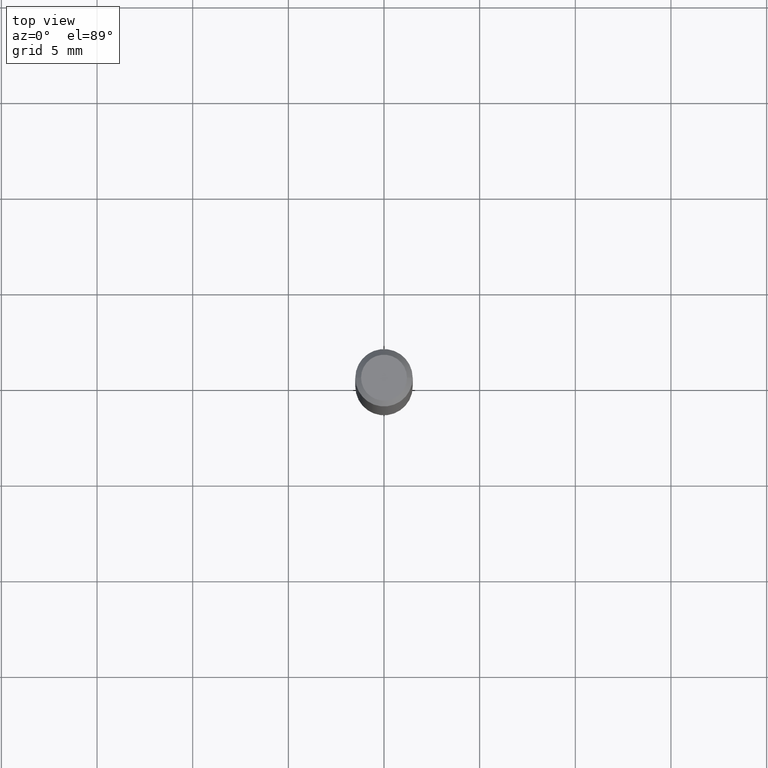
[diagram: clean part render]
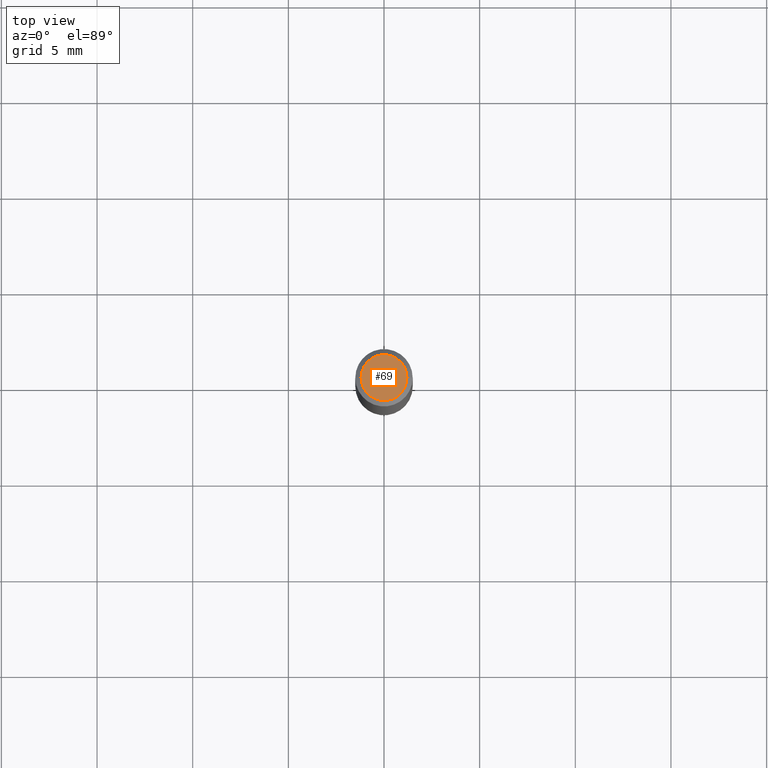
[diagram: same view with one face highlighted and labeled with its STEP entity id]
A machine part, top view. The second image highlights one B-rep face of the part: STEP entity #69.
In plain terms, the highlighted planar face has unit normal (0, -0, -1).
Its self-contained STEP definition (entity closure, byte-faithful):
#16 = FACE_OUTER_BOUND ( 'NONE', #379, .T. ) ;
#20 = CARTESIAN_POINT ( 'NONE',  ( 4.132873053354867254E-48, -5.900647395337818946E-34, -1.690012582823346072E-19 ) ) ;
#37 = CARTESIAN_POINT ( 'NONE',  ( 0.04724000000000000421, -3.852183633974369345E-16, -3.380025165621689721E-19 ) ) ;
#40 = AXIS2_PLACEMENT_3D ( 'NONE', #20, #172, #328 ) ;
#47 = ORIENTED_EDGE ( 'NONE', *, *, #344, .T. ) ;
#69 = ADVANCED_FACE ( 'NONE', ( #16 ), #469, .F. ) ;
#75 = AXIS2_PLACEMENT_3D ( 'NONE', #93, #165, #334 ) ;
#93 = CARTESIAN_POINT ( 'NONE',  ( 8.265746106709734507E-48, -1.180129479067563789E-33, -3.380025165646692144E-19 ) ) ;
#99 = CIRCLE ( 'NONE', #75, 0.04724000000000000421 ) ;
#113 = CIRCLE ( 'NONE', #247, 0.04724000000000000421 ) ;
#120 = ORIENTED_EDGE ( 'NONE', *, *, #375, .T. ) ;
#165 = DIRECTION ( 'NONE',  ( -2.445468806185136597E-29, 3.491481338843145583E-15, 1.000000000000000000 ) ) ;
#172 = DIRECTION ( 'NONE',  ( 2.438088387897960049E-29, -3.491481338843145188E-15, -1.000000000000000000 ) ) ;
#204 = DIRECTION ( 'NONE',  ( 1.000000000000000000, -6.982962677686266711E-15, 4.876185090822587894E-29 ) ) ;
#207 = CARTESIAN_POINT ( 'NONE',  ( 8.265746106709734507E-48, -1.180129479067563789E-33, -3.380025165646692144E-19 ) ) ;
#247 = AXIS2_PLACEMENT_3D ( 'NONE', #207, #407, #204 ) ;
#324 = CARTESIAN_POINT ( 'NONE',  ( -0.04724000000000000421, 3.504923541997677355E-16, -3.380025165670481712E-19 ) ) ;
#328 = DIRECTION ( 'NONE',  ( -1.000000000000000000, 6.982962677686265922E-15, -4.876176775795935793E-29 ) ) ;
#334 = DIRECTION ( 'NONE',  ( 1.000000000000000000, -6.982962677686266711E-15, 4.876185090822587894E-29 ) ) ;
#344 = EDGE_CURVE ( 'NONE', #427, #387, #99, .T. ) ;
#375 = EDGE_CURVE ( 'NONE', #387, #427, #113, .T. ) ;
#379 = EDGE_LOOP ( 'NONE', ( #120, #47 ) ) ;
#387 = VERTEX_POINT ( 'NONE', #324 ) ;
#407 = DIRECTION ( 'NONE',  ( -2.445468806185136597E-29, 3.491481338843145583E-15, 1.000000000000000000 ) ) ;
#427 = VERTEX_POINT ( 'NONE', #37 ) ;
#469 = PLANE ( 'NONE',  #40 ) ;